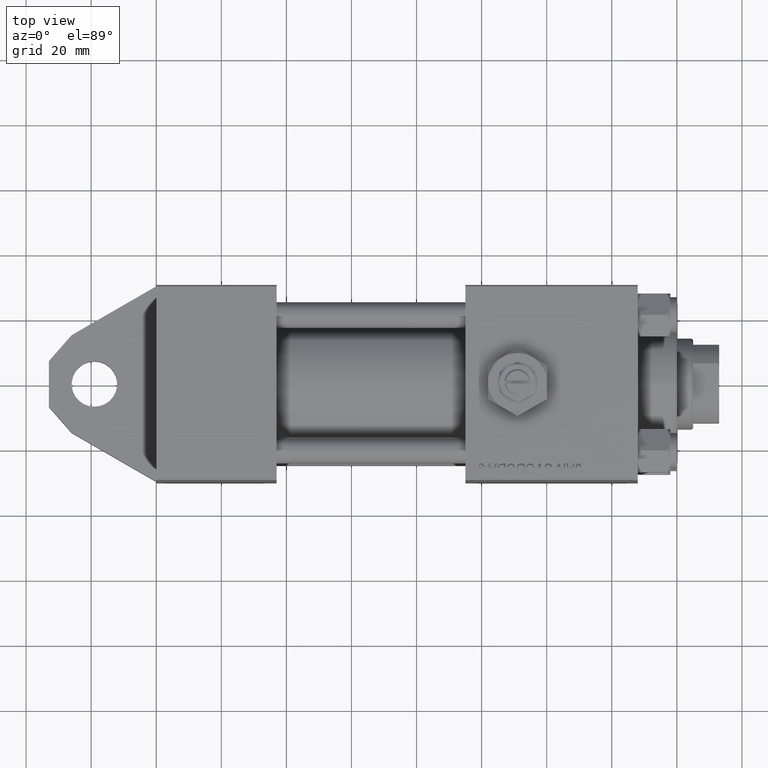
[diagram: clean part render]
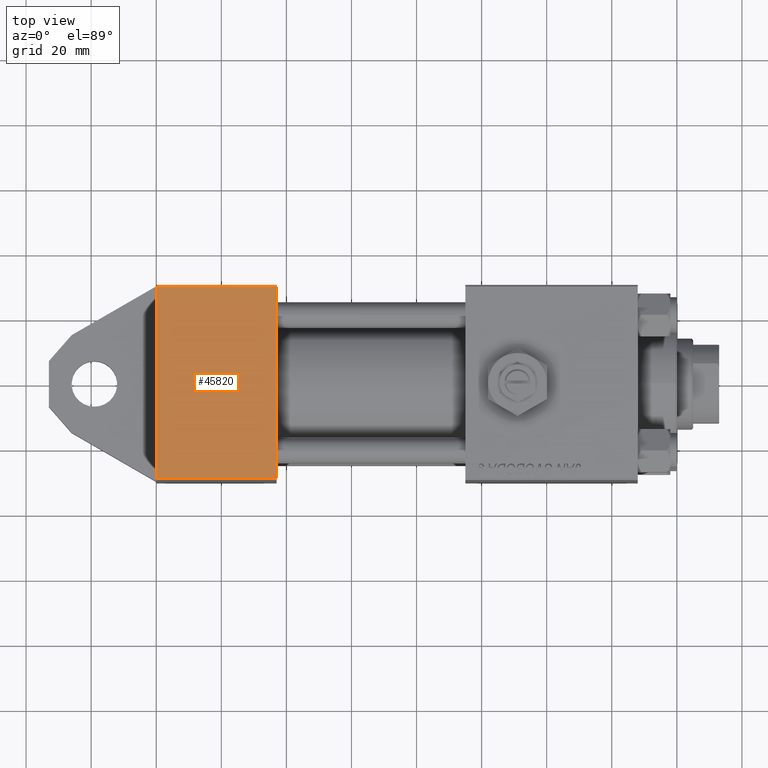
[diagram: same view with one face highlighted and labeled with its STEP entity id]
A machine part, top view. The second image highlights one B-rep face of the part: STEP entity #45820.
In plain terms, the highlighted planar face has unit normal (-0, 0, 1).
Its self-contained STEP definition (entity closure, byte-faithful):
#2190 = ORIENTED_EDGE ( 'NONE', *, *, #13376, .F. ) ;
#2231 = EDGE_CURVE ( 'NONE', #27626, #13744, #26982, .T. ) ;
#2629 = PLANE ( 'NONE',  #25077 ) ;
#2915 = LINE ( 'NONE', #3638, #21903 ) ;
#3638 = CARTESIAN_POINT ( 'NONE',  ( 37.00000000000000000, 29.99999999999999289, -29.50000000000000000 ) ) ;
#5606 = DIRECTION ( 'NONE',  ( 0.000000000000000000, 0.000000000000000000, -1.000000000000000000 ) ) ;
#8625 = ORIENTED_EDGE ( 'NONE', *, *, #2231, .T. ) ;
#9336 = CARTESIAN_POINT ( 'NONE',  ( 37.00000000000000000, 29.99999999999999289, 30.00000000000000000 ) ) ;
#11979 = EDGE_CURVE ( 'NONE', #13744, #25658, #16590, .T. ) ;
#12873 = CARTESIAN_POINT ( 'NONE',  ( 0.000000000000000000, 29.99999999999999289, 30.00000000000000000 ) ) ;
#13376 = EDGE_CURVE ( 'NONE', #27626, #31364, #38481, .T. ) ;
#13744 = VERTEX_POINT ( 'NONE', #25826 ) ;
#14693 = VECTOR ( 'NONE', #30138, 1000.000000000000000 ) ;
#16177 = CARTESIAN_POINT ( 'NONE',  ( 0.000000000000000000, 29.99999999999999289, 29.50000000000000000 ) ) ;
#16487 = VECTOR ( 'NONE', #39060, 1000.000000000000000 ) ;
#16590 = LINE ( 'NONE', #9336, #16487 ) ;
#19726 = CARTESIAN_POINT ( 'NONE',  ( 37.00000000000000000, 29.99999999999999289, -29.50000000000000000 ) ) ;
#20055 = ORIENTED_EDGE ( 'NONE', *, *, #11979, .T. ) ;
#20982 = CARTESIAN_POINT ( 'NONE',  ( 37.00000000000000000, 29.99999999999999289, 30.00000000000000000 ) ) ;
#21228 = DIRECTION ( 'NONE',  ( -0.000000000000000000, 1.000000000000000000, 0.000000000000000000 ) ) ;
#21517 = DIRECTION ( 'NONE',  ( -1.000000000000000000, 0.000000000000000000, 0.000000000000000000 ) ) ;
#21903 = VECTOR ( 'NONE', #21517, 1000.000000000000000 ) ;
#24229 = VECTOR ( 'NONE', #5606, 1000.000000000000000 ) ;
#24381 = DIRECTION ( 'NONE',  ( 0.000000000000000000, -0.000000000000000000, 1.000000000000000000 ) ) ;
#25077 = AXIS2_PLACEMENT_3D ( 'NONE', #20982, #21228, #24381 ) ;
#25658 = VERTEX_POINT ( 'NONE', #19726 ) ;
#25826 = CARTESIAN_POINT ( 'NONE',  ( 37.00000000000000000, 29.99999999999999289, 29.50000000000000000 ) ) ;
#26982 = LINE ( 'NONE', #40782, #14693 ) ;
#27197 = ORIENTED_EDGE ( 'NONE', *, *, #40528, .T. ) ;
#27626 = VERTEX_POINT ( 'NONE', #16177 ) ;
#29167 = CARTESIAN_POINT ( 'NONE',  ( 0.000000000000000000, 29.99999999999999289, -29.50000000000000000 ) ) ;
#30138 = DIRECTION ( 'NONE',  ( 1.000000000000000000, 0.000000000000000000, 0.000000000000000000 ) ) ;
#31364 = VERTEX_POINT ( 'NONE', #29167 ) ;
#33732 = EDGE_LOOP ( 'NONE', ( #20055, #27197, #2190, #8625 ) ) ;
#38481 = LINE ( 'NONE', #12873, #24229 ) ;
#39060 = DIRECTION ( 'NONE',  ( 0.000000000000000000, 0.000000000000000000, -1.000000000000000000 ) ) ;
#40528 = EDGE_CURVE ( 'NONE', #25658, #31364, #2915, .T. ) ;
#40782 = CARTESIAN_POINT ( 'NONE',  ( 37.00000000000000000, 29.99999999999999289, 29.50000000000000000 ) ) ;
#45820 = ADVANCED_FACE ( 'NONE', ( #45910 ), #2629, .T. ) ;
#45910 = FACE_OUTER_BOUND ( 'NONE', #33732, .T. ) ;